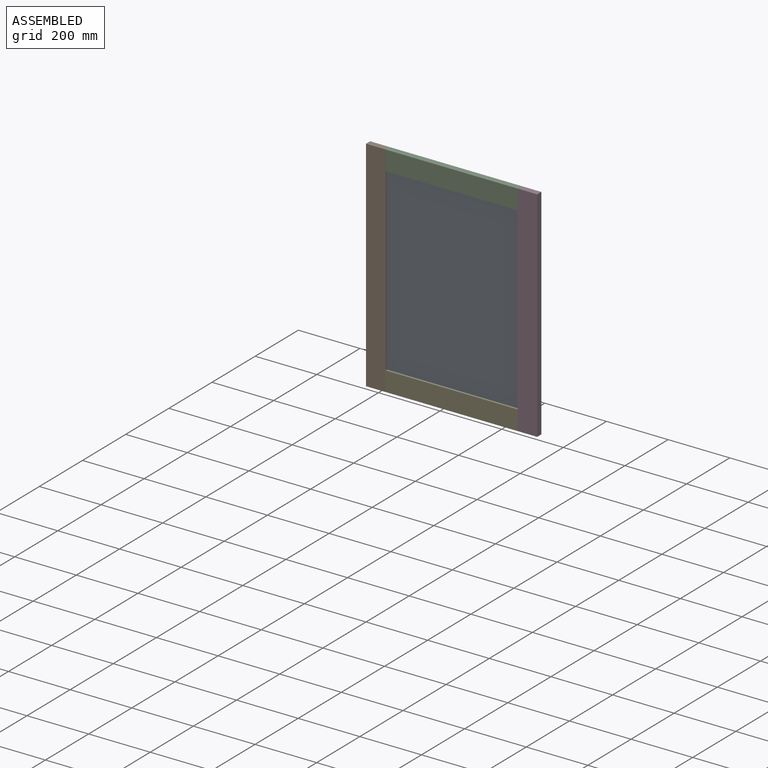
[diagram: assembled view]
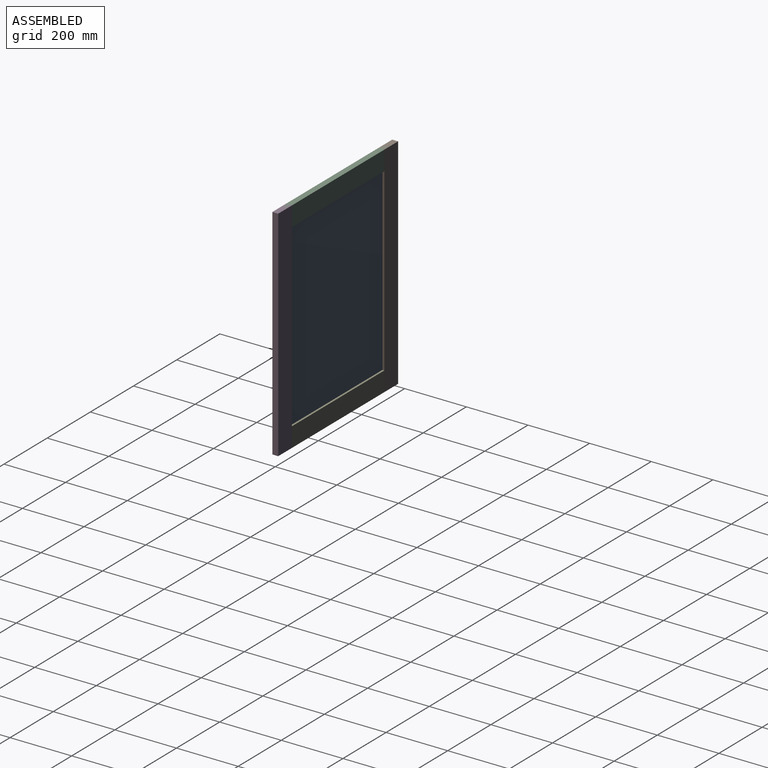
[diagram: assembled view, second angle]
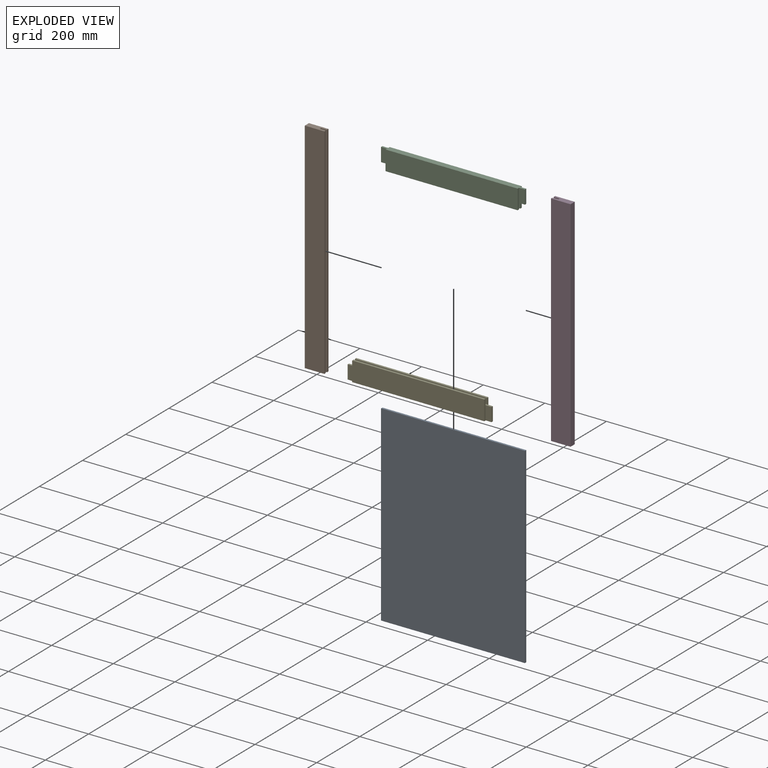
[diagram: exploded view]
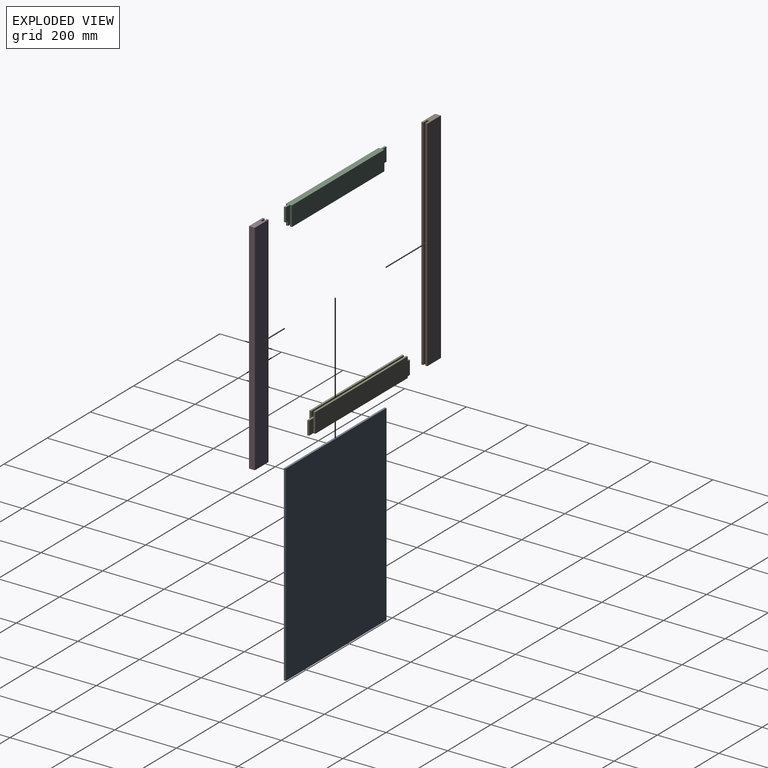
[diagram: exploded view, second angle]
ASSEMBLY  parts=5 mates=4
PART A: 6 faces, bbox 466.7x622.3x6.4 mm
  f0: plane 622.3x6.35mm, normal (-1,0,0), area 3951.6mm2, adj f1,f3,f4,f5
  f1: plane 466.73x6.35mm, normal (0,-1,0), area 2963.7mm2, adj f0,f2,f4,f5
  f2: plane 622.3x6.35mm, normal (1,0,0), area 3951.6mm2, adj f1,f3,f4,f5
  f3: plane 466.73x6.35mm, normal (0,1,0), area 2963.7mm2, adj f0,f2,f4,f5
  f4: plane 622.3x466.73mm, normal (0,0,1), area 290443mm2, adj f0,f1,f2,f3
  f5: plane 622.3x466.73mm, normal (0,0,-1), area 290443mm2, adj f0,f1,f2,f3
PART B: 10 faces, bbox 19.1x63.5x711.2 mm
  f0: plane 711.2x6.35mm, normal (0,1,0), area 4516.1mm2, adj f1,f4,f6,f9
  f1: plane 63.5x19.05mm, normal (0,0,-1), area 1088.7mm2, adj f0,f2,f3,f4,f5,f7,f8,f9
  f2: plane 711.2x63.5mm, normal (-1,0,0), area 45161.2mm2, adj f1,f3,f5,f6
  f3: plane 711.2x19.05mm, normal (0,-1,0), area 13548.4mm2, adj f1,f2,f4,f6
  f4: plane 711.2x63.5mm, normal (1,0,0), area 45161.2mm2, adj f0,f1,f3,f6
  f5: plane 711.2x6.35mm, normal (0,1,0), area 4516.1mm2, adj f1,f2,f6,f7
  f6: plane 63.5x19.05mm, normal (0,0,1), area 1088.7mm2, adj f0,f2,f3,f4,f5,f7,f8,f9
  f7: plane 711.2x19.05mm, normal (1,0,0), area 13548.4mm2, adj f1,f5,f6,f8
  f8: plane 711.2x6.35mm, normal (0,1,0), area 4516.1mm2, adj f1,f6,f7,f9
  f9: plane 711.2x19.05mm, normal (-1,0,0), area 13548.4mm2, adj f0,f1,f6,f8
PART C: 18 faces, bbox 19.1x63.5x466.7 mm
  f0: plane 428.63x6.35mm, normal (0,1,0), area 2721.8mm2, adj f4,f8,f11,f12
  f1: plane 44.45x6.35mm, normal (0,0,-1), area 282.3mm2, adj f3,f9,f10,f16
  f2: plane 428.63x63.5mm, normal (-1,0,0), area 27217.7mm2, adj f3,f5,f14,f17
  f3: plane 466.73x19.05mm, normal (0,-1,0), area 8407.2mm2, adj f1,f2,f4,f6,f10,f11,f12,f13
  f4: plane 428.63x63.5mm, normal (1,0,0), area 27217.7mm2, adj f0,f3,f11,f12
  f5: plane 428.63x6.35mm, normal (0,1,0), area 2721.8mm2, adj f2,f7,f14,f17
  f6: plane 44.45x6.35mm, normal (0,0,1), area 282.3mm2, adj f3,f9,f13,f15
  f7: plane 428.63x19.05mm, normal (1,0,0), area 8165.3mm2, adj f5,f9,f14,f17
  f8: plane 428.63x19.05mm, normal (-1,0,0), area 8165.3mm2, adj f0,f9,f11,f12
  f9: plane 466.73x6.35mm, normal (0,1,0), area 2963.7mm2, adj f1,f6,f7,f8,f10,f13,f15,f16
  f10: plane 44.45x19.05mm, normal (1,0,0), area 846.8mm2, adj f1,f3,f9,f11
  f11: plane 63.5x6.35mm, normal (0,0,-1), area 403.2mm2, adj f0,f3,f4,f8,f10
  f12: plane 63.5x6.35mm, normal (0,0,1), area 403.2mm2, adj f0,f3,f4,f8,f13
  f13: plane 44.45x19.05mm, normal (1,0,0), area 846.8mm2, adj f3,f6,f9,f12
  f14: plane 63.5x6.35mm, normal (0,0,1), area 403.2mm2, adj f2,f3,f5,f7,f15
  f15: plane 44.45x19.05mm, normal (-1,0,0), area 846.8mm2, adj f3,f6,f9,f14
  f16: plane 44.45x19.05mm, normal (-1,0,0), area 846.8mm2, adj f1,f3,f9,f17
  f17: plane 63.5x6.35mm, normal (0,0,-1), area 403.2mm2, adj f2,f3,f5,f7,f16
PART D: same geometry as B
PART E: same geometry as C
PLACE A rot(axis=(0,0.71,0.71),180deg) t=(511.17,6.35,44.45)mm
PLACE B rot(axis=(0,0,-1),90deg) t=(0,19.05,0)mm
PLACE C rot(axis=(-0.58,-0.58,0.58),120deg) t=(511.18,-31.75,711.2)mm
PLACE D rot(axis=(0,0,1),90deg) t=(555.62,0,0)mm
PLACE E rot(axis=(0.58,-0.58,-0.58),120deg) t=(511.18,50.8,0)mm
MATE fastened C.f6 <-> B.f8  axis (-1,0,0) through (44.45,9.52,711.2)mm
MATE fastened E.f6 <-> B.f8  axis (-1,0,0) through (44.45,9.52,0)mm
MATE fastened A.f3 <-> C.f9  axis (0,0,1) through (277.81,9.53,666.75)mm
MATE fastened D.f8 <-> C.f1  axis (-1,0,0) through (511.18,9.52,711.2)mm
